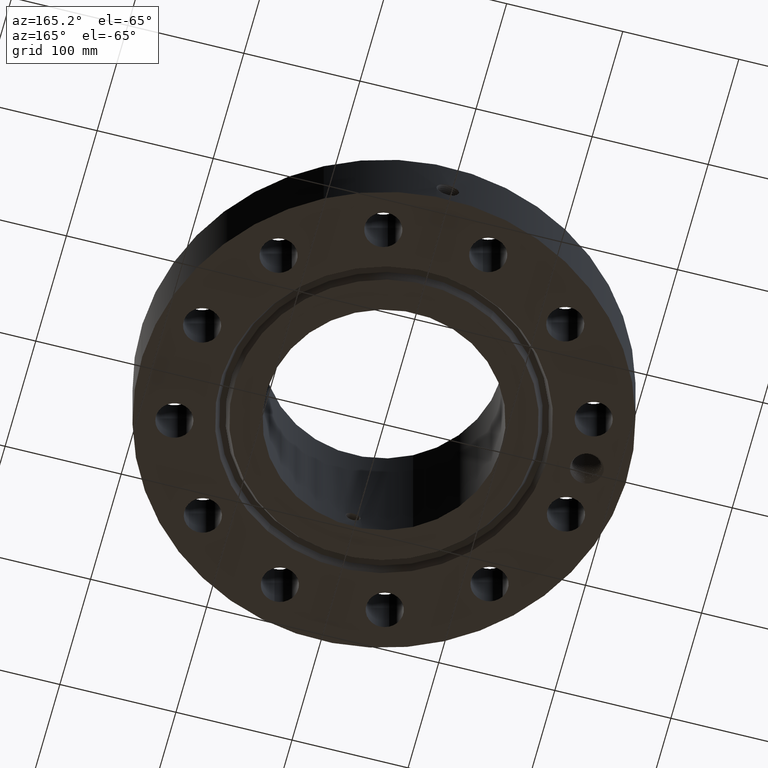
[diagram: clean part render]
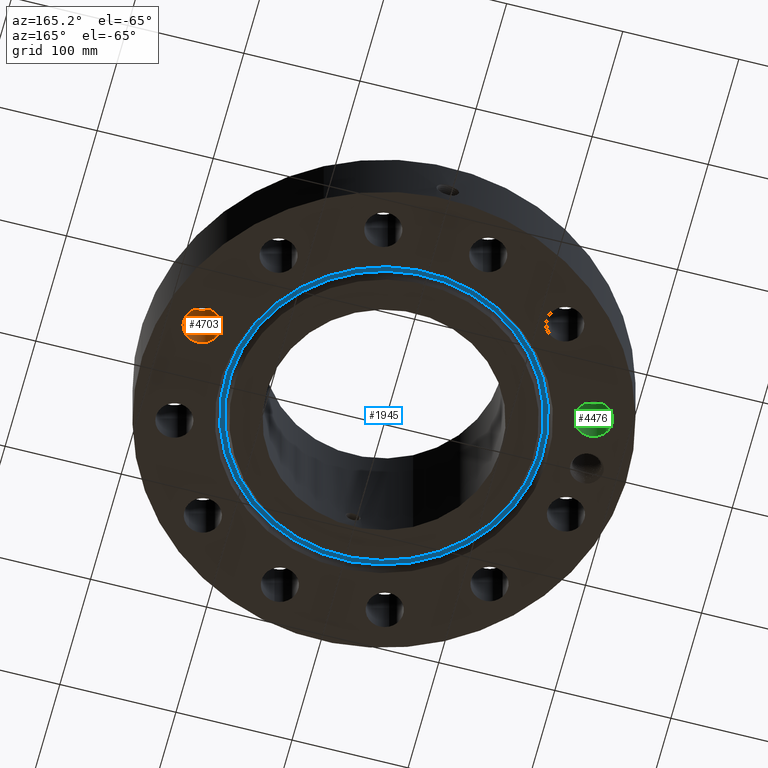
[diagram: same view with three faces highlighted in distinct colors, each labeled with its STEP entity id]
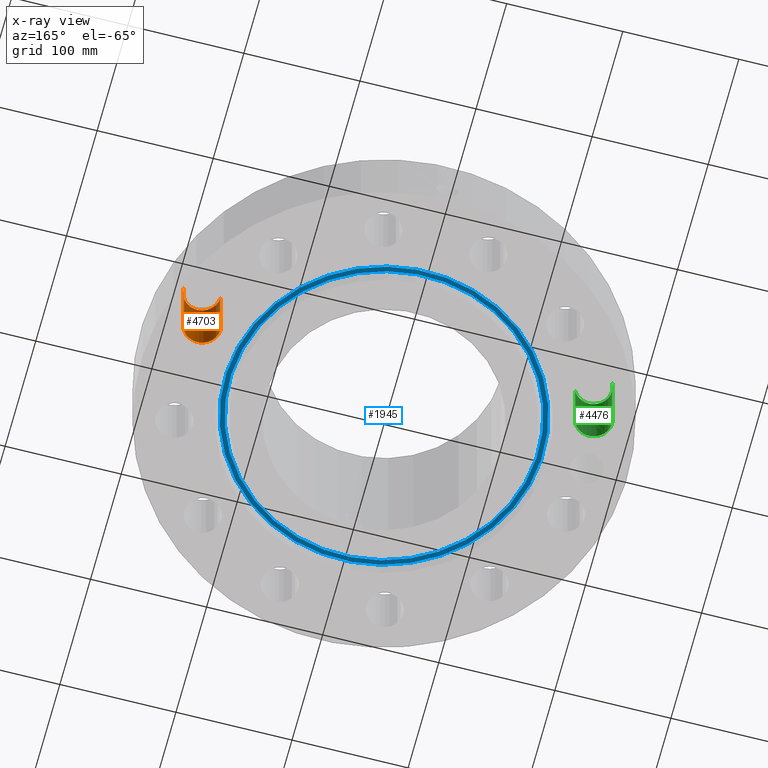
[diagram: x-ray of the same camera — body ghosted, the three highlighted faces saturated]
A machine part, auxiliary view with three faces highlighted in distinct colors.
The next image is the same camera in x-ray (body ghosted, the three faces saturated) — at least one of them is partly hidden behind the body in this view.
Their STEP definitions:

[orange] entity #4703 — the highlighted cylindrical surface (edge-blend (fillet) strip) has radius 15.875 mm, axis along (0, 0, -1).
#3192=AXIS2_PLACEMENT_3D('Circle Axis2P3D',#3190,#3191,$) ;
#4664=AXIS2_PLACEMENT_3D('Cylinder Axis2P3D',#4661,#4662,#4663) ;
#4694=AXIS2_PLACEMENT_3D('Circle Axis2P3D',#4692,#4693,$) ;
#3190=CARTESIAN_POINT('Axis2P3D Location',(6.64074005576,1.77938093509,2.50200000001)) ;
#3194=CARTESIAN_POINT('Vertex',(7.2655660319,1.79412880089,2.50200000001)) ;
#3196=CARTESIAN_POINT('Vertex',(6.01591407963,1.76463306928,2.50200000001)) ;
#4661=CARTESIAN_POINT('Axis2P3D Location',(6.64074005576,1.77938093509,2.49806299214)) ;
#4666=CARTESIAN_POINT('Line Origine',(6.01591407963,1.76463306928,1.25100000001)) ;
#4670=CARTESIAN_POINT('Vertex',(6.01591407963,1.76463306928,0.)) ;
#4677=CARTESIAN_POINT('Vertex',(7.2655660319,1.79412880089,0.)) ;
#4680=CARTESIAN_POINT('Line Origine',(7.2655660319,1.79412880089,1.25100000001)) ;
#4692=CARTESIAN_POINT('Axis2P3D Location',(6.64074005576,1.77938093509,0.)) ;
#3191=DIRECTION('Axis2P3D Direction',(0.,0.,-0.0393700787402)) ;
#4662=DIRECTION('Axis2P3D Direction',(0.,0.,-0.0393700787402)) ;
#4663=DIRECTION('Axis2P3D XDirection',(0.039359116607,0.000928999420902,0.)) ;
#4667=DIRECTION('Vector Direction',(0.,0.,-0.0393700787402)) ;
#4681=DIRECTION('Vector Direction',(0.,0.,-0.0393700787402)) ;
#4693=DIRECTION('Axis2P3D Direction',(0.,0.,-0.0393700787402)) ;
#4668=VECTOR('Line Direction',#4667,0.0393700787402) ;
#4682=VECTOR('Line Direction',#4681,0.0393700787402) ;
#4698=ORIENTED_EDGE('',*,*,#4684,.F.) ;
#4699=ORIENTED_EDGE('',*,*,#4696,.T.) ;
#4700=ORIENTED_EDGE('',*,*,#4672,.T.) ;
#4701=ORIENTED_EDGE('',*,*,#3198,.F.) ;
#4703=ADVANCED_FACE('PartBody',(#4702),#4665,.F.) ;
#3193=CIRCLE('generated circle',#3192,0.625000000003) ;
#4695=CIRCLE('generated circle',#4694,0.625000000003) ;
#4665=CYLINDRICAL_SURFACE('generated cylinder',#4664,0.625000000003) ;
#3198=EDGE_CURVE('',#3195,#3197,#3193,.T.) ;
#4672=EDGE_CURVE('',#4671,#3197,#4669,.F.) ;
#4684=EDGE_CURVE('',#4678,#3195,#4683,.F.) ;
#4696=EDGE_CURVE('',#4678,#4671,#4695,.T.) ;
#4697=EDGE_LOOP('',(#4698,#4699,#4700,#4701)) ;
#4702=FACE_OUTER_BOUND('',#4697,.T.) ;
#4669=LINE('Line',#4666,#4668) ;
#4683=LINE('Line',#4680,#4682) ;
#3195=VERTEX_POINT('',#3194) ;
#3197=VERTEX_POINT('',#3196) ;
#4671=VERTEX_POINT('',#4670) ;
#4678=VERTEX_POINT('',#4677) ;

[blue] entity #1945 — the highlighted planar face has unit normal (0, 0, 1).
#1425=AXIS2_PLACEMENT_3D('Circle Axis2P3D',#1423,#1424,$) ;
#1451=AXIS2_PLACEMENT_3D('Circle Axis2P3D',#1449,#1450,$) ;
#1921=AXIS2_PLACEMENT_3D('Plane Axis2P3D',#1918,#1919,#1920) ;
#1925=AXIS2_PLACEMENT_3D('Circle Axis2P3D',#1923,#1924,$) ;
#1934=AXIS2_PLACEMENT_3D('Circle Axis2P3D',#1932,#1933,$) ;
#1423=CARTESIAN_POINT('Axis2P3D Location',(0.,0.,0.312000000001)) ;
#1427=CARTESIAN_POINT('Vertex',(2.50753589932,-4.59001367545,0.312000000001)) ;
#1429=CARTESIAN_POINT('Vertex',(-2.50753589932,4.59001367545,0.312000000001)) ;
#1449=CARTESIAN_POINT('Axis2P3D Location',(0.,0.,0.312000000001)) ;
#1918=CARTESIAN_POINT('Axis2P3D Location',(0.,5.23029270951,0.312000000001)) ;
#1923=CARTESIAN_POINT('Axis2P3D Location',(0.,0.,0.312000000001)) ;
#1927=CARTESIAN_POINT('Vertex',(-2.58636044837,4.73430104467,0.312000000001)) ;
#1929=CARTESIAN_POINT('Vertex',(2.58636044837,-4.73430104467,0.312000000001)) ;
#1932=CARTESIAN_POINT('Axis2P3D Location',(0.,0.,0.312000000001)) ;
#1424=DIRECTION('Axis2P3D Direction',(0.,0.,0.0393700787402)) ;
#1450=DIRECTION('Axis2P3D Direction',(0.,0.,0.0393700787402)) ;
#1919=DIRECTION('Axis2P3D Direction',(0.,0.,0.0393700787402)) ;
#1920=DIRECTION('Axis2P3D XDirection',(0.0393700787402,0.,0.)) ;
#1924=DIRECTION('Axis2P3D Direction',(0.,0.,0.0393700787402)) ;
#1933=DIRECTION('Axis2P3D Direction',(0.,0.,0.0393700787402)) ;
#1938=ORIENTED_EDGE('',*,*,#1931,.F.) ;
#1939=ORIENTED_EDGE('',*,*,#1936,.F.) ;
#1942=ORIENTED_EDGE('',*,*,#1431,.T.) ;
#1943=ORIENTED_EDGE('',*,*,#1453,.T.) ;
#1944=FACE_BOUND('',#1941,.T.) ;
#1945=ADVANCED_FACE('PartBody',(#1940,#1944),#1922,.F.) ;
#1426=CIRCLE('generated circle',#1425,5.23029270951) ;
#1452=CIRCLE('generated circle',#1451,5.23029270951) ;
#1926=CIRCLE('generated circle',#1925,5.39470729053) ;
#1935=CIRCLE('generated circle',#1934,5.39470729053) ;
#1431=EDGE_CURVE('',#1428,#1430,#1426,.T.) ;
#1453=EDGE_CURVE('',#1430,#1428,#1452,.T.) ;
#1931=EDGE_CURVE('',#1928,#1930,#1926,.T.) ;
#1936=EDGE_CURVE('',#1930,#1928,#1935,.T.) ;
#1937=EDGE_LOOP('',(#1938,#1939)) ;
#1941=EDGE_LOOP('',(#1942,#1943)) ;
#1940=FACE_OUTER_BOUND('',#1937,.T.) ;
#1922=PLANE('',#1921) ;
#1428=VERTEX_POINT('',#1427) ;
#1430=VERTEX_POINT('',#1429) ;
#1928=VERTEX_POINT('',#1927) ;
#1930=VERTEX_POINT('',#1929) ;

[green] entity #4476 — the highlighted cylindrical surface (edge-blend (fillet) strip) has radius 15.875 mm, axis along (-0, 0, -1).
#3111=AXIS2_PLACEMENT_3D('Circle Axis2P3D',#3109,#3110,$) ;
#4449=AXIS2_PLACEMENT_3D('Cylinder Axis2P3D',#4446,#4447,#4448) ;
#4460=AXIS2_PLACEMENT_3D('Circle Axis2P3D',#4458,#4459,$) ;
#3104=CARTESIAN_POINT('Vertex',(-7.18922915695,2.07902189672,2.50200000001)) ;
#3106=CARTESIAN_POINT('Vertex',(-6.09225095458,1.47973997346,2.50200000001)) ;
#3109=CARTESIAN_POINT('Axis2P3D Location',(-6.64074005576,1.77938093509,2.50200000001)) ;
#4446=CARTESIAN_POINT('Axis2P3D Location',(-6.64074005576,1.77938093509,2.49806299214)) ;
#4451=CARTESIAN_POINT('Line Origine',(-6.09225095458,1.47973997346,1.25100000001)) ;
#4455=CARTESIAN_POINT('Vertex',(-6.09225095458,1.47973997346,0.)) ;
#4458=CARTESIAN_POINT('Axis2P3D Location',(-6.64074005576,1.77938093509,0.)) ;
#4462=CARTESIAN_POINT('Vertex',(-7.18922915695,2.07902189672,0.)) ;
#4465=CARTESIAN_POINT('Line Origine',(-7.18922915695,2.07902189672,1.25100000001)) ;
#3110=DIRECTION('Axis2P3D Direction',(0.,0.,-0.0393700787402)) ;
#4447=DIRECTION('Axis2P3D Direction',(-0.,0.,-0.0393700787402)) ;
#4448=DIRECTION('Axis2P3D XDirection',(-0.0345504945626,0.0188750212049,0.)) ;
#4452=DIRECTION('Vector Direction',(0.,0.,-0.0393700787402)) ;
#4459=DIRECTION('Axis2P3D Direction',(-0.,0.,-0.0393700787402)) ;
#4466=DIRECTION('Vector Direction',(0.,0.,-0.0393700787402)) ;
#4453=VECTOR('Line Direction',#4452,0.0393700787402) ;
#4467=VECTOR('Line Direction',#4466,0.0393700787402) ;
#4471=ORIENTED_EDGE('',*,*,#4457,.F.) ;
#4472=ORIENTED_EDGE('',*,*,#4464,.T.) ;
#4473=ORIENTED_EDGE('',*,*,#4469,.T.) ;
#4474=ORIENTED_EDGE('',*,*,#3113,.F.) ;
#4476=ADVANCED_FACE('PartBody',(#4475),#4450,.F.) ;
#3112=CIRCLE('generated circle',#3111,0.625000000002) ;
#4461=CIRCLE('generated circle',#4460,0.625000000002) ;
#4450=CYLINDRICAL_SURFACE('generated cylinder',#4449,0.625000000002) ;
#3113=EDGE_CURVE('',#3107,#3105,#3112,.T.) ;
#4457=EDGE_CURVE('',#4456,#3107,#4454,.F.) ;
#4464=EDGE_CURVE('',#4456,#4463,#4461,.T.) ;
#4469=EDGE_CURVE('',#4463,#3105,#4468,.F.) ;
#4470=EDGE_LOOP('',(#4471,#4472,#4473,#4474)) ;
#4475=FACE_OUTER_BOUND('',#4470,.T.) ;
#4454=LINE('Line',#4451,#4453) ;
#4468=LINE('Line',#4465,#4467) ;
#3105=VERTEX_POINT('',#3104) ;
#3107=VERTEX_POINT('',#3106) ;
#4456=VERTEX_POINT('',#4455) ;
#4463=VERTEX_POINT('',#4462) ;